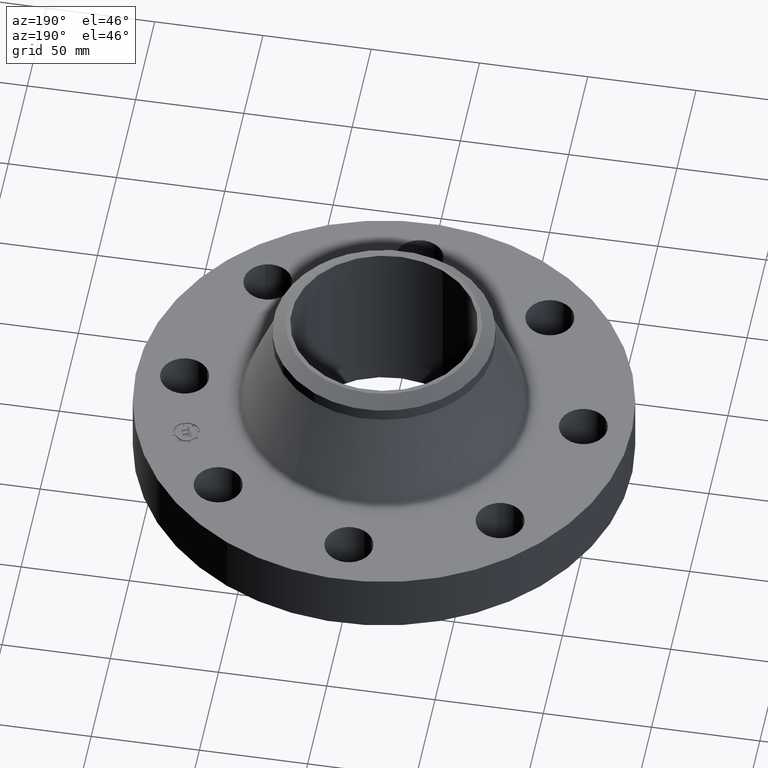
[diagram: clean part render]
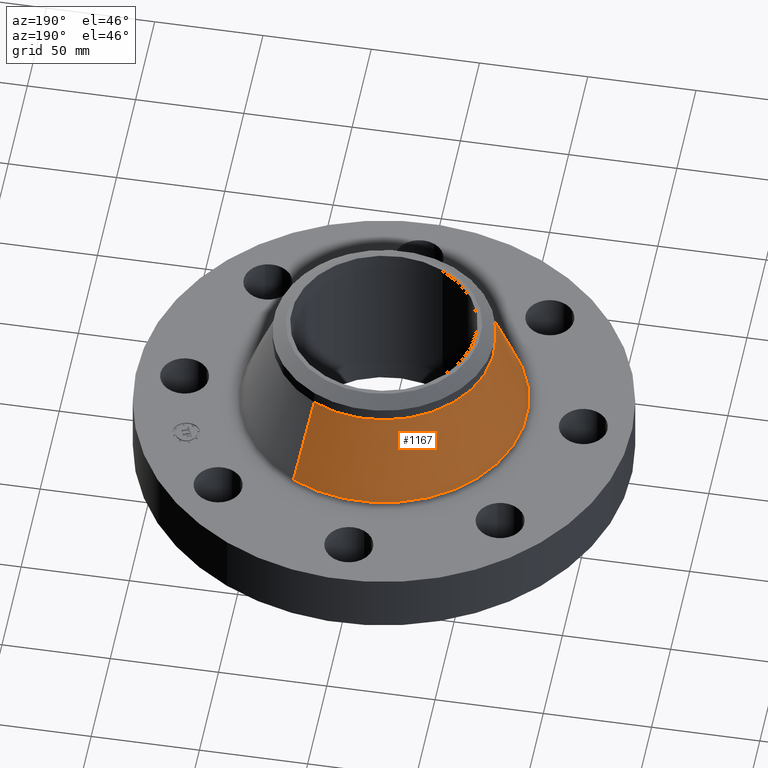
[diagram: same view with one face highlighted and labeled with its STEP entity id]
A machine part, auxiliary view. The second image highlights one B-rep face of the part: STEP entity #1167.
In plain terms, the highlighted conical surface has half-angle 21.457 deg.
Its self-contained STEP definition (entity closure, byte-faithful):
#940=AXIS2_PLACEMENT_3D('Circle Axis2P3D',#938,#939,$) ;
#1140=AXIS2_PLACEMENT_3D('Cone Axis2P3D',#1137,#1138,#1139) ;
#1151=AXIS2_PLACEMENT_3D('Circle Axis2P3D',#1149,#1150,$) ;
#935=CARTESIAN_POINT('Vertex',(-1.24415158825,-2.27740420624,1.19610450375)) ;
#938=CARTESIAN_POINT('Axis2P3D Location',(0.,0.,1.19610450375)) ;
#942=CARTESIAN_POINT('Vertex',(1.24415158825,2.27740420624,1.19610450375)) ;
#1137=CARTESIAN_POINT('Axis2P3D Location',(0.,0.,2.71018899327)) ;
#1142=CARTESIAN_POINT('Line Origine',(-1.10150133273,-2.01628466502,1.95314674851)) ;
#1146=CARTESIAN_POINT('Vertex',(-0.958851077212,-1.75516512379,2.71018899327)) ;
#1149=CARTESIAN_POINT('Axis2P3D Location',(0.,0.,2.71018899327)) ;
#1153=CARTESIAN_POINT('Vertex',(0.958851077214,1.75516512379,2.71018899327)) ;
#1156=CARTESIAN_POINT('Line Origine',(1.10150133273,2.01628466502,1.95314674851)) ;
#939=DIRECTION('Axis2P3D Direction',(-0.,0.,-0.0393700787402)) ;
#1138=DIRECTION('Axis2P3D Direction',(0.,0.,-0.0393700787402)) ;
#1139=DIRECTION('Axis2P3D XDirection',(-0.0188750212049,-0.0345504945626,0.)) ;
#1143=DIRECTION('Vector Direction',(-0.00690440352171,-0.0126384258722,-0.0366415406811)) ;
#1150=DIRECTION('Axis2P3D Direction',(-0.,0.,-0.0393700787402)) ;
#1157=DIRECTION('Vector Direction',(0.00690440352171,0.0126384258722,-0.0366415406811)) ;
#1144=VECTOR('Line Direction',#1143,0.0393700787402) ;
#1158=VECTOR('Line Direction',#1157,0.0393700787402) ;
#1162=ORIENTED_EDGE('',*,*,#944,.F.) ;
#1163=ORIENTED_EDGE('',*,*,#1148,.T.) ;
#1164=ORIENTED_EDGE('',*,*,#1155,.T.) ;
#1165=ORIENTED_EDGE('',*,*,#1160,.F.) ;
#1167=ADVANCED_FACE('PartBody',(#1166),#1141,.T.) ;
#941=CIRCLE('generated circle',#940,2.59508826307) ;
#1152=CIRCLE('generated circle',#1151,2.00000000001) ;
#1141=CONICAL_SURFACE('Cone',#1140,2.00000000001,0.374487721633) ;
#944=EDGE_CURVE('',#936,#943,#941,.T.) ;
#1148=EDGE_CURVE('',#936,#1147,#1145,.F.) ;
#1155=EDGE_CURVE('',#1147,#1154,#1152,.T.) ;
#1160=EDGE_CURVE('',#943,#1154,#1159,.F.) ;
#1161=EDGE_LOOP('',(#1162,#1163,#1164,#1165)) ;
#1166=FACE_OUTER_BOUND('',#1161,.T.) ;
#1145=LINE('Line',#1142,#1144) ;
#1159=LINE('Line',#1156,#1158) ;
#936=VERTEX_POINT('',#935) ;
#943=VERTEX_POINT('',#942) ;
#1147=VERTEX_POINT('',#1146) ;
#1154=VERTEX_POINT('',#1153) ;